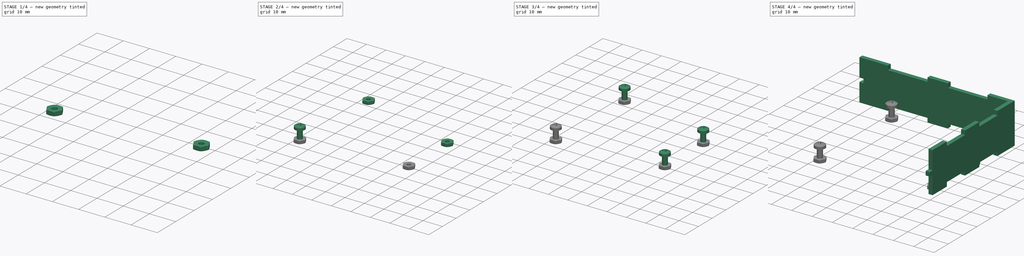
[diagram: build sequence overview — one tinted view per stage of 4, left to right]
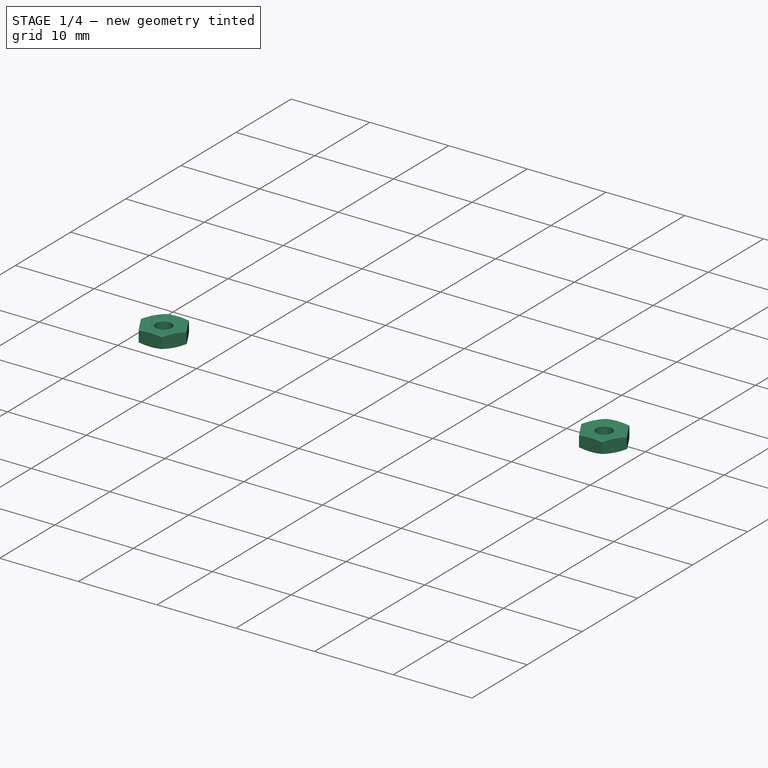
[diagram: stage 1 of 4 — iso view after this stage's code; geometry added in this stage tinted green]
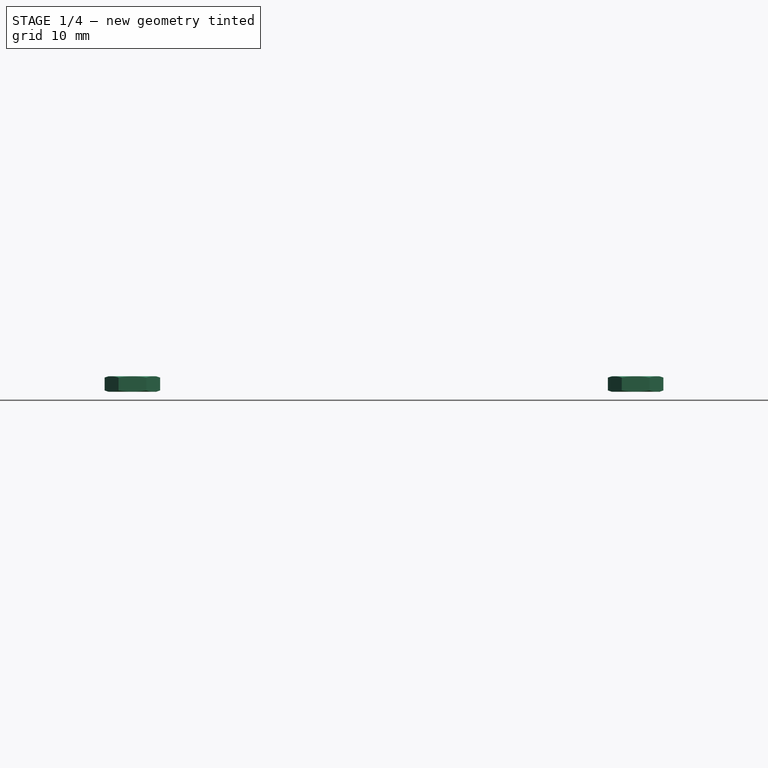
[diagram: stage 1 of 4 — front view after this stage's code; geometry added in this stage tinted green]
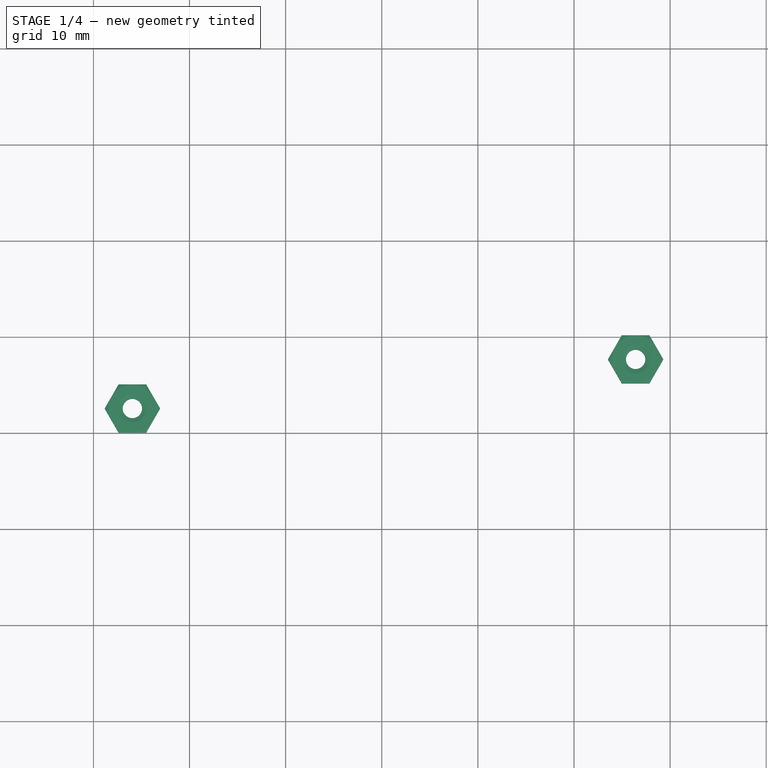
[diagram: stage 1 of 4 — top view after this stage's code; geometry added in this stage tinted green]
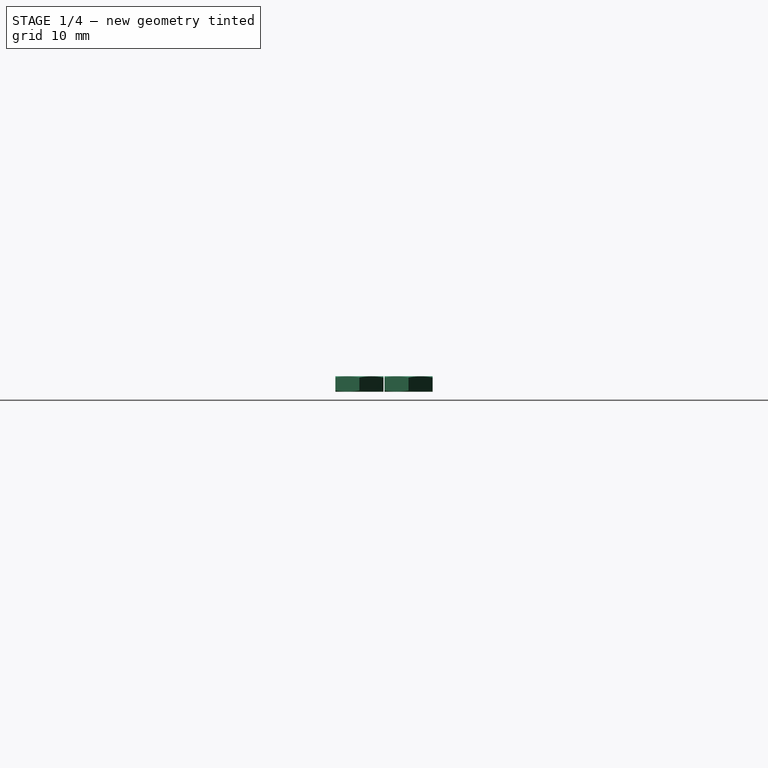
[diagram: stage 1 of 4 — right view after this stage's code; geometry added in this stage tinted green]
FCSTD DOCUMENT  (FreeCAD 0.19R)
Label: CAIXA-ARDUINO_05
License: Creative Commons Attribution-NonCommercial
LicenseURL: http://creativecommons.org/licenses/by-nc/4.0/
objects: Part::FeaturePython×8, Sketcher::SketchObject×3, Part::Extrusion×3, App::DocumentObjectGroup×2, Spreadsheet::Sheet×1, Part::Feature×1, Part::Mirroring×1
note: 16 computed .brp shape members not serialized (recipe doc carries the construction recipe); baked Part::Feature solids carry a one-line shape summary decoded from their .brp

FEATURE [Spreadsheet::Sheet] Spreadsheet
  cells = A1=Espessura; B1(width)=2; A2=Altura; B2(height)=20; A3=Furo; B3(diameter)=3.5; A4=Conector A; B4(connectorA)=12; A5=Conector B; B5(connectorB)=10; A6=Conector C; B6(connectorC)=5; A7=Folga; B7(space)=1
FEATURE [Part::Feature] ARDUINO_3D_SCALED
  Placement = pos=(0,0,3) rot=(0,0,1;0rad)
  shape: bbox 75.35 x 53.65 x 13.2 mm, 104 faces, 0 solids (baked)
  expr: .Placement.Base.z = Spreadsheet.width + Spreadsheet.space
FEATURE [Sketcher::SketchObject] Sketch  label="Base"
  ExternalGeometry = -> [ARDUINO_3D_SCALED]
  expr: Constraints[153] = Spreadsheet.diameter
  expr: Constraints[121] = Spreadsheet.width
  expr: Constraints[122] = Spreadsheet.connectorA
  expr: Constraints[124] = Spreadsheet.connectorB
  expr: Constraints[145] = Spreadsheet.space
  sketch-geometry (57):
    g0: LineSegment StartX=-1 StartY=54.65 StartZ=0 EndX=11 EndY=54.65 EndZ=0
    g1: LineSegment StartX=11 StartY=54.65 StartZ=0 EndX=11 EndY=56.65 EndZ=0
    g2: LineSegment StartX=11 StartY=56.65 StartZ=0 EndX=30.475 EndY=56.65 EndZ=0
    g3: LineSegment StartX=30.475 StartY=56.65 StartZ=0 EndX=30.475 EndY=54.65 EndZ=0
    g4: LineSegment StartX=30.475 StartY=54.65 StartZ=0 EndX=40.475 EndY=54.65 EndZ=0
    g5: LineSegment StartX=40.475 StartY=54.65 StartZ=0 EndX=40.475 EndY=56.65 EndZ=0
    g6: LineSegment StartX=40.475 StartY=56.65 StartZ=0 EndX=59.95 EndY=56.65 EndZ=0
    g7: LineSegment StartX=59.95 StartY=56.65 StartZ=0 EndX=59.95 EndY=54.65 EndZ=0
    g8: LineSegment StartX=59.95 StartY=54.65 StartZ=0 EndX=69.95 EndY=54.65 EndZ=0
    g9: LineSegment StartX=69.95 StartY=54.65 StartZ=0 EndX=69.95 EndY=44.65 EndZ=0
    g10: LineSegment StartX=69.95 StartY=44.65 StartZ=0 EndX=71.95 EndY=44.65 EndZ=0
    g11: LineSegment StartX=71.95 StartY=44.65 StartZ=0 EndX=71.95 EndY=31.825 EndZ=0
    g12: LineSegment StartX=71.95 StartY=31.825 StartZ=0 EndX=69.95 EndY=31.825 EndZ=0
    g13: LineSegment StartX=69.95 StartY=31.825 StartZ=0 EndX=69.95 EndY=21.825 EndZ=0
    g14: LineSegment StartX=69.95 StartY=21.825 StartZ=0 EndX=71.95 EndY=21.825 EndZ=0
    g15: LineSegment StartX=71.95 StartY=21.825 StartZ=0 EndX=71.95 EndY=9 EndZ=0
    g16: LineSegment StartX=71.95 StartY=9 StartZ=0 EndX=69.95 EndY=9 EndZ=0
    g17: LineSegment StartX=69.95 StartY=9 StartZ=0 EndX=69.95 EndY=-1 EndZ=0
    g18: LineSegment StartX=69.95 StartY=-1 StartZ=0 EndX=59.95 EndY=-1 EndZ=0
    g19: LineSegment StartX=59.95 StartY=-1 StartZ=0 EndX=59.95 EndY=-3 EndZ=0
    g20: LineSegment StartX=59.95 StartY=-3 StartZ=0 EndX=40.475 EndY=-3 EndZ=0
    g21: LineSegment StartX=40.475 StartY=-3 StartZ=0 EndX=40.475 EndY=-1 EndZ=0
    g22: LineSegment StartX=40.475 StartY=-1 StartZ=0 EndX=30.475 EndY=-1 EndZ=0
    g23: LineSegment StartX=30.475 StartY=-1 StartZ=0 EndX=30.475 EndY=-3 EndZ=0
    g24: LineSegment StartX=30.475 StartY=-3 StartZ=0 EndX=11 EndY=-3 EndZ=0
    g25: LineSegment StartX=11 StartY=-3 StartZ=0 EndX=11 EndY=-1 EndZ=0
    g26: LineSegment StartX=11 StartY=-1 StartZ=0 EndX=-1 EndY=-1 EndZ=0
    g27: LineSegment StartX=-1 StartY=-1 StartZ=0 EndX=-1 EndY=54.65 EndZ=0
    g28: LineSegment [constr] StartX=-1 StartY=54.65 StartZ=0 EndX=-1 EndY=56.65 EndZ=0
    g29: LineSegment [constr] StartX=-1 StartY=56.65 StartZ=0 EndX=11 EndY=56.65 EndZ=0
    g30: LineSegment [constr] StartX=30.475 StartY=56.65 StartZ=0 EndX=40.475 EndY=56.65 EndZ=0
    g31: LineSegment [constr] StartX=59.95 StartY=56.65 StartZ=0 EndX=71.95 EndY=56.65 EndZ=0
    g32: LineSegment [constr] StartX=71.95 StartY=56.65 StartZ=0 EndX=71.95 EndY=44.65 EndZ=0
    g33: LineSegment [constr] StartX=69.95 StartY=54.65 StartZ=0 EndX=69.95 EndY=56.65 EndZ=0
    g34: LineSegment [constr] StartX=69.95 StartY=54.65 StartZ=0 EndX=71.95 EndY=54.65 EndZ=0
    g35: LineSegment [constr] StartX=71.95 StartY=31.825 StartZ=0 EndX=71.95 EndY=21.825 EndZ=0
    g36: LineSegment [constr] StartX=69.95 StartY=44.65 StartZ=0 EndX=69.95 EndY=31.825 EndZ=0
    g37: LineSegment [constr] StartX=69.95 StartY=21.825 StartZ=0 EndX=69.95 EndY=9 EndZ=0
    g38: LineSegment [constr] StartX=40.475 StartY=54.65 StartZ=0 EndX=59.95 EndY=54.65 EndZ=0
    g39: LineSegment [constr] StartX=11 StartY=54.65 StartZ=0 EndX=30.475 EndY=54.65 EndZ=0
    g40: LineSegment [constr] StartX=71.95 StartY=9 StartZ=0 EndX=71.95 EndY=-3 EndZ=0
    g41: LineSegment [constr] StartX=71.95 StartY=-3 StartZ=0 EndX=59.95 EndY=-3 EndZ=0
    g42: LineSegment [constr] StartX=69.95 StartY=-1 StartZ=0 EndX=71.95 EndY=-1 EndZ=0
    g43: LineSegment [constr] StartX=69.95 StartY=-1 StartZ=0 EndX=69.95 EndY=-3 EndZ=0
    g44: LineSegment [constr] StartX=40.475 StartY=-1 StartZ=0 EndX=59.95 EndY=-1 EndZ=0
    g45: LineSegment [constr] StartX=30.475 StartY=-3 StartZ=0 EndX=40.475 EndY=-3 EndZ=0
    g46: LineSegment [constr] StartX=11 StartY=-1 StartZ=0 EndX=30.475 EndY=-1 EndZ=0
    g47: LineSegment [constr] StartX=-1 StartY=-1 StartZ=0 EndX=-1 EndY=-3 EndZ=0
    g48: LineSegment [constr] StartX=-1 StartY=-3 StartZ=0 EndX=11 EndY=-3 EndZ=0
    g49: LineSegment [constr] StartX=32.925 StartY=53.65 StartZ=0 EndX=32.925 EndY=54.65 EndZ=0
    g50: LineSegment [constr] StartX=68.95 StartY=21.575 StartZ=0 EndX=69.95 EndY=21.575 EndZ=0
    g51: LineSegment [constr] StartX=33.2 StartY=4e-16 StartZ=0 EndX=33.2 EndY=-1 EndZ=0
    g52: LineSegment [constr] StartX=-1e-16 StartY=22.75 StartZ=0 EndX=-1 EndY=22.75 EndZ=0
    g53: Circle CenterX=14.0525 CenterY=2.55698 CenterZ=0 NormalX=0 NormalY=0 NormalZ=1 AngleXU=0 Radius=1.75
    g54: Circle CenterX=66.4139 CenterY=7.6684 CenterZ=0 NormalX=0 NormalY=0 NormalZ=1 AngleXU=0 Radius=1.75
    g55: Circle CenterX=66.41 CenterY=35.7498 CenterZ=0 NormalX=0 NormalY=0 NormalZ=1 AngleXU=0 Radius=1.75
    g56: Circle CenterX=15.3341 CenterY=51.0829 CenterZ=0 NormalX=0 NormalY=0 NormalZ=1 AngleXU=0 Radius=1.75
  constraints (154):
    c: Horizontal(g0)
    c: Coincident(g0,g1)
    c: Vertical(g1)
    c: Coincident(g1,g2)
    c: Horizontal(g2)
    c: Coincident(g2,g3)
    c: Vertical(g3)
    c: Coincident(g3,g4)
    c: Horizontal(g4)
    c: Coincident(g4,g5)
    c: Vertical(g5)
    c: Coincident(g5,g6)
    c: Horizontal(g6)
    c: Coincident(g6,g7)
    c: Vertical(g7)
    c: Coincident(g7,g8)
    c: Horizontal(g8)
    c: Coincident(g8,g9)
    c: Vertical(g9)
    c: Coincident(g9,g10)
    c: Horizontal(g10)
    c: Coincident(g10,g11)
    c: Vertical(g11)
    c: Coincident(g11,g12)
    c: Horizontal(g12)
    c: Coincident(g12,g13)
    c: Vertical(g13)
    c: Coincident(g13,g14)
    c: Horizontal(g14)
    c: Coincident(g14,g15)
    c: Vertical(g15)
    c: Coincident(g15,g16)
    c: Horizontal(g16)
    c: Coincident(g16,g17)
    c: Vertical(g17)
    c: Coincident(g17,g18)
    c: Horizontal(g18)
    c: Coincident(g18,g19)
    c: Vertical(g19)
    c: Coincident(g19,g20)
    c: Horizontal(g20)
    c: Coincident(g20,g21)
    c: Vertical(g21)
    c: Coincident(g21,g22)
    c: Horizontal(g22)
    c: Coincident(g22,g23)
    c: Vertical(g23)
    c: Coincident(g23,g24)
    c: Horizontal(g24)
    c: Coincident(g24,g25)
    c: Vertical(g25)
    c: Coincident(g25,g26)
    c: Horizontal(g26)
    c: Coincident(g26,g27)
    c: Vertical(g27)
    c: Coincident(g27,g0)
    c: Coincident(g0,g28)
    c: Vertical(g28)
    c: Coincident(g28,g29)
    c: Horizontal(g29)
    c: Coincident(g2,g30)
    c: Coincident(g30,g5)
    c: Horizontal(g30)
    c: Coincident(g6,g31)
    c: Horizontal(g31)
    c: Coincident(g32,g10)
    c: Vertical(g32)
    c: Coincident(g31,g32)
    c: Coincident(g33,g8)
    c: PointOnObject(g33,g31)
    c: Vertical(g33)
    c: Coincident(g34,g8)
    c: PointOnObject(g34,g32)
    c: Horizontal(g34)
    c: Coincident(g35,g11)
    c: Coincident(g35,g14)
    c: Vertical(g35)
    c: Coincident(g36,g9)
    c: Coincident(g36,g12)
    c: Vertical(g36)
    c: Coincident(g37,g13)
    c: Coincident(g37,g16)
    c: Vertical(g37)
    c: Coincident(g38,g4)
    c: Coincident(g38,g7)
    c: Horizontal(g38)
    c: Coincident(g39,g0)
    c: Coincident(g39,g3)
    c: Horizontal(g39)
    c: Coincident(g15,g40)
    c: Vertical(g40)
    c: Coincident(g40,g41)
    c: Coincident(g41,g19)
    c: Horizontal(g41)
    c: Coincident(g42,g17)
    c: PointOnObject(g42,g40)
    c: Horizontal(g42)
    c: Coincident(g43,g17)
    c: PointOnObject(g43,g41)
    c: Vertical(g43)
    c: Coincident(g44,g21)
    c: Coincident(g44,g18)
    c: Horizontal(g44)
    c: Coincident(g45,g23)
    c: Coincident(g45,g20)
    c: Horizontal(g45)
    c: Coincident(g46,g25)
    c: Coincident(g46,g22)
    c: Horizontal(g46)
    c: Coincident(g26,g47)
    c: Coincident(g47,g48)
    c: Coincident(g48,g24)
    c: Horizontal(g48)
    c: Equal(g29,g31)
    c: Equal(g31,g32)
    c: Equal(g32,g40)
    c: Equal(g40,g41)
    c: Equal(g41,g48)
    c: Coincident(g1,g29)
    c: Equal(g34,g33)
    c: Equal(g33,g43)
    c: DistanceY(g28,g28) = 2
    c: DistanceX(g29,g29) = 12
    c: Equal(g30,g45)
    c: DistanceX(g30,g30) = 10
    c: Equal(g6,g2)
    c: Equal(g2,g24)
    c: Equal(g24,g20)
    c: PointOnObject(g49,g4)
    c: Vertical(g49)
    c: PointOnObject(g50,g13)
    c: Horizontal(g50)
    c: PointOnObject(g51,g22)
    c: Vertical(g51)
    c: PointOnObject(g52,g27)
    c: Horizontal(g52)
    c: Symmetric(g-4,g-4,g52)
    c: Symmetric(g-3,g-3,g49)
    c: Symmetric(g-6,g-6,g50)
    c: Symmetric(g-5,g-5,g51)
    c: Equal(g51,g50)
    c: Equal(g50,g49)
    c: Equal(g49,g52)
    c: Equal(g35,g30)
    c: Equal(g11,g15)
    c: DistanceY(g49,g49) = 1
    c: Coincident(g53,g-15)
    c: Coincident(g54,g-14)
    c: Coincident(g55,g-13)
    c: Coincident(g56,g-12)
    c: Equal(g56,g55)
    c: Equal(g55,g54)
    c: Equal(g54,g53)
    c: Diameter(g56) = 3.5
FEATURE [Part::Extrusion] Extrude  label="Base001"
  Base = -> Sketch
  Dir = (0,0,1)
  DirMode = 2
  FaceMakerClass = Part::FaceMakerBullseye
  LengthFwd = 2
  LengthRev = 0
  Solid = true
  Symmetric = false
  expr: LengthFwd = Spreadsheet.width
FEATURE [Part::FeaturePython] Nut002  label="M2.5-Nut083"  # Fasteners workbench fastener (typed FeaturePython)
  Placement = pos=(66.4139,7.6684,0) rot=(-1,0,0;3.14159rad)
  baseObject = -> Extrude [Edge92]
  diameter = 3
  invert = true
  matchOuter = false
  offset = 0
  thread = false
  type = 9
FEATURE [Part::FeaturePython] Nut003  label="M2.5-Nut084"  # Fasteners workbench fastener (typed FeaturePython)
  Placement = pos=(14.0525,2.55698,0) rot=(-1,0,0;3.14159rad)
  baseObject = -> Extrude [Edge95]
  diameter = 3
  invert = true
  matchOuter = false
  offset = 0
  thread = false
  type = 9
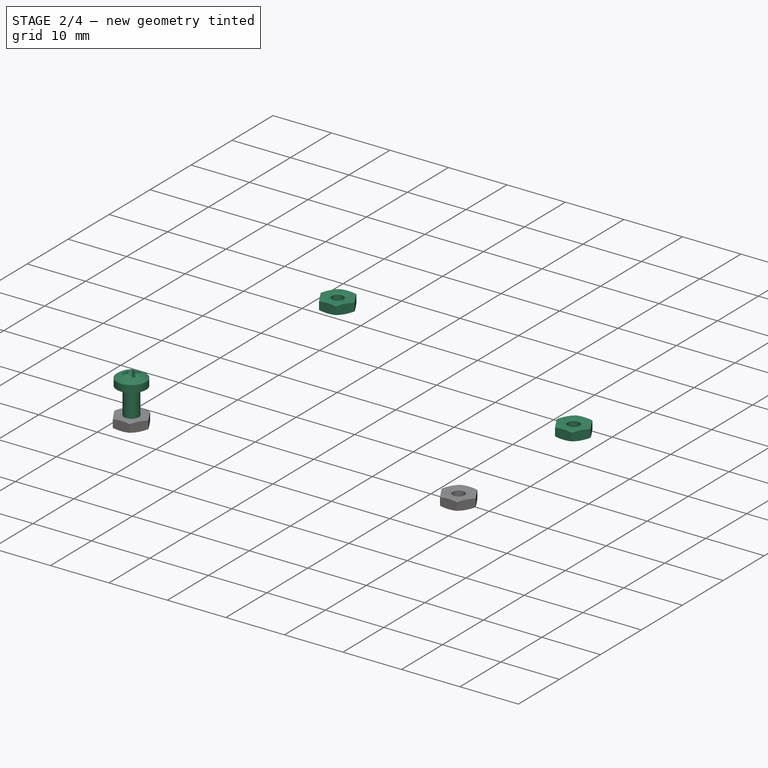
[diagram: stage 2 of 4 — iso view after this stage's code; geometry added in this stage tinted green]
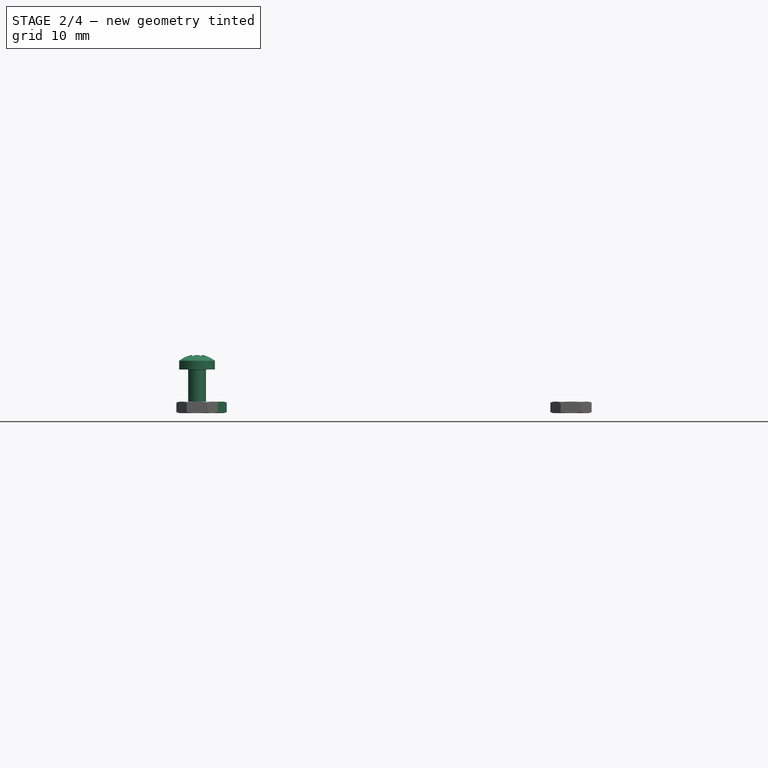
[diagram: stage 2 of 4 — front view after this stage's code; geometry added in this stage tinted green]
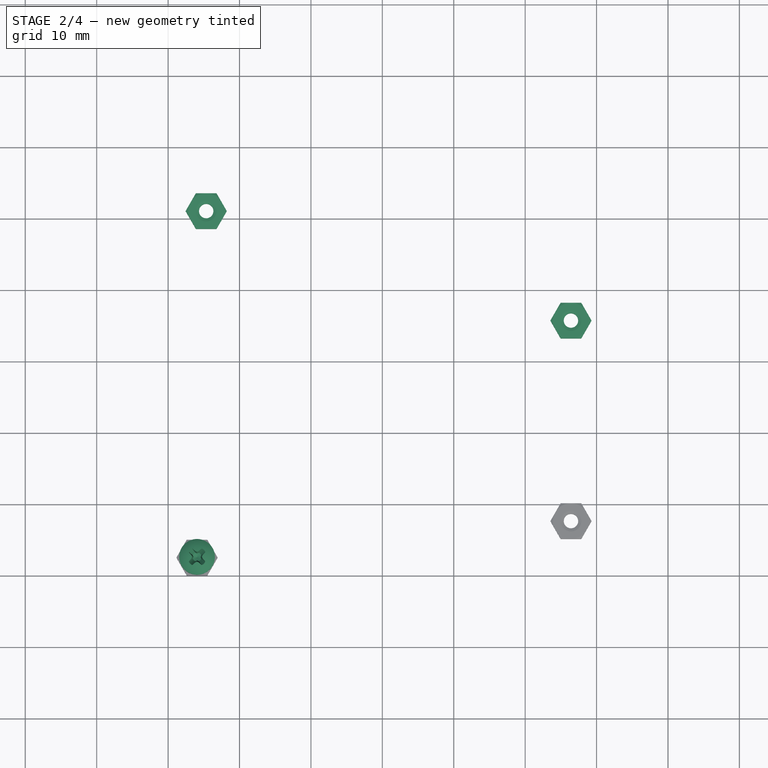
[diagram: stage 2 of 4 — top view after this stage's code; geometry added in this stage tinted green]
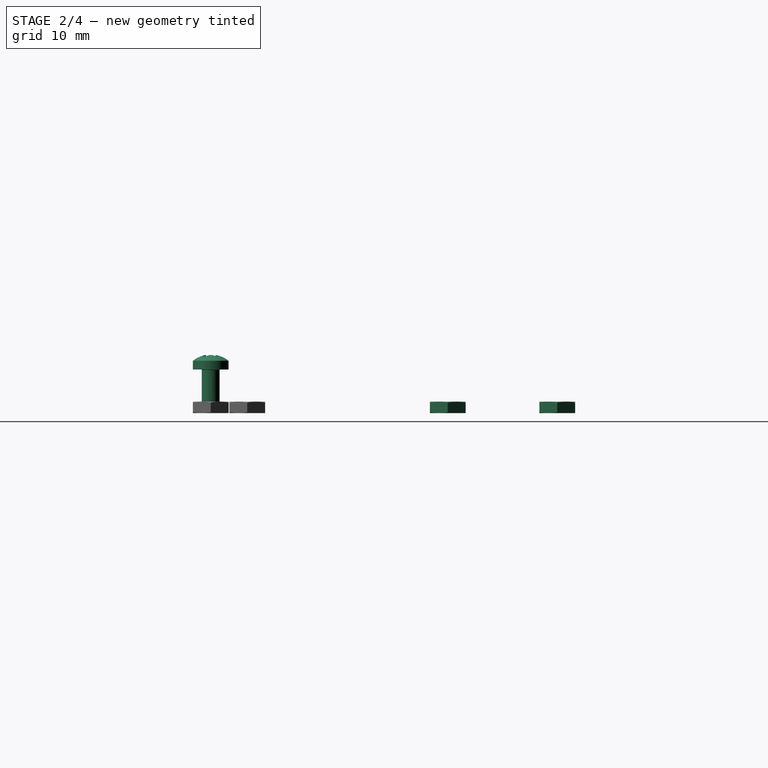
[diagram: stage 2 of 4 — right view after this stage's code; geometry added in this stage tinted green]
FEATURE [Part::FeaturePython] Nut  label="M2.5-Nut"  # Fasteners workbench fastener (typed FeaturePython)
  Placement = pos=(15.3341,51.0829,0) rot=(-1,0,0;3.14159rad)
  baseObject = -> Extrude [Edge86]
  diameter = 3
  invert = true
  matchOuter = false
  offset = 0
  thread = false
  type = 9
FEATURE [Part::FeaturePython] Nut001  label="M2.5-Nut082"  # Fasteners workbench fastener (typed FeaturePython)
  Placement = pos=(66.41,35.7498,0) rot=(-1,0,0;3.14159rad)
  baseObject = -> Extrude [Edge89]
  diameter = 3
  invert = true
  matchOuter = false
  offset = 0
  thread = false
  type = 9
FEATURE [Part::FeaturePython] Screw003  label="M2.5x6-Screw069"  # Fasteners workbench fastener (typed FeaturePython)
  Placement = pos=(14.0525,2.55698,4.5) rot=(0,0,1;0rad)
  baseObject = -> Extrude [Edge96]
  diameter = 3
  invert = false
  length = 3
  lengthCustom = 6
  matchOuter = false
  offset = 2.5
  thread = false
  type = 33
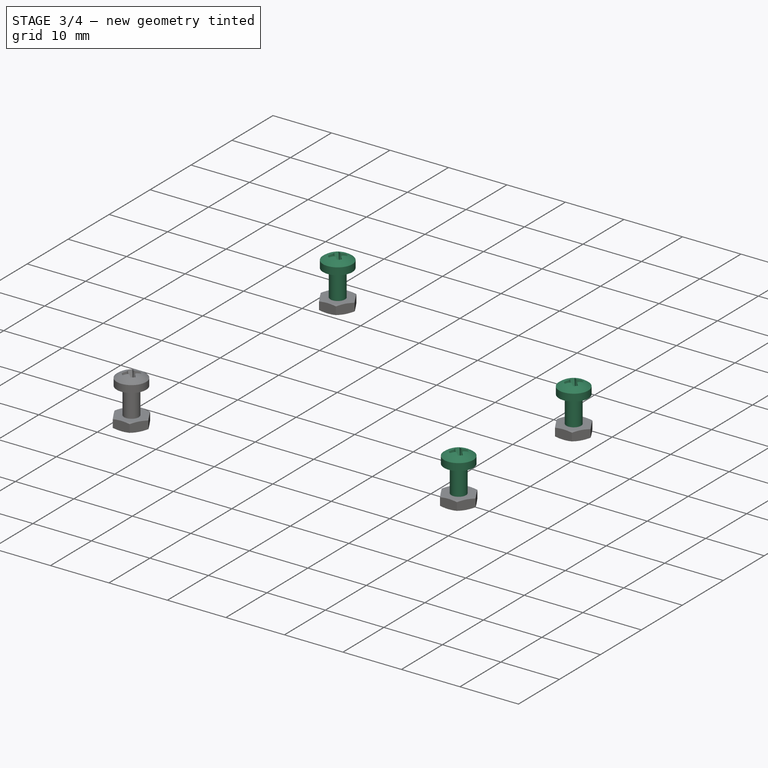
[diagram: stage 3 of 4 — iso view after this stage's code; geometry added in this stage tinted green]
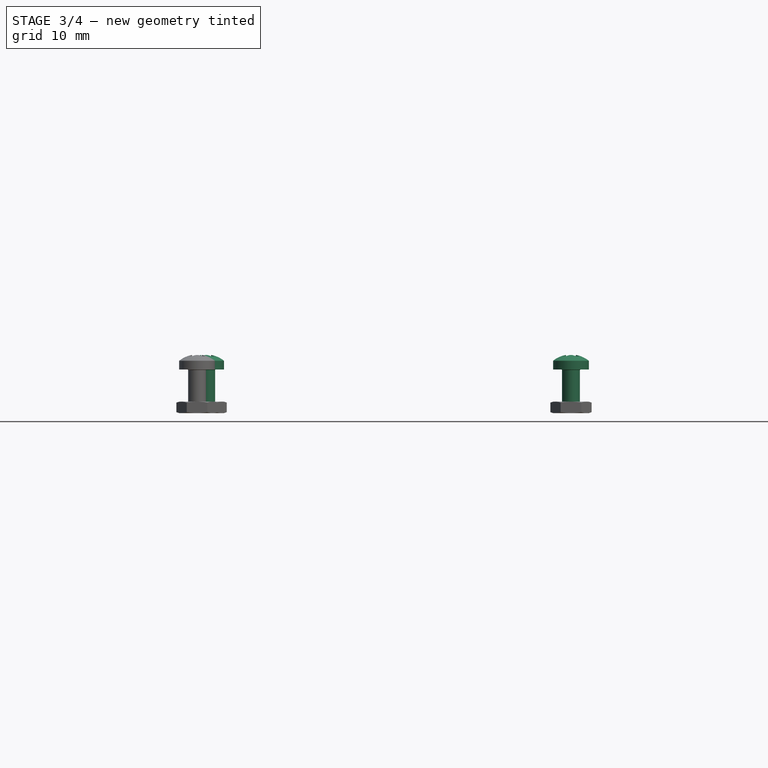
[diagram: stage 3 of 4 — front view after this stage's code; geometry added in this stage tinted green]
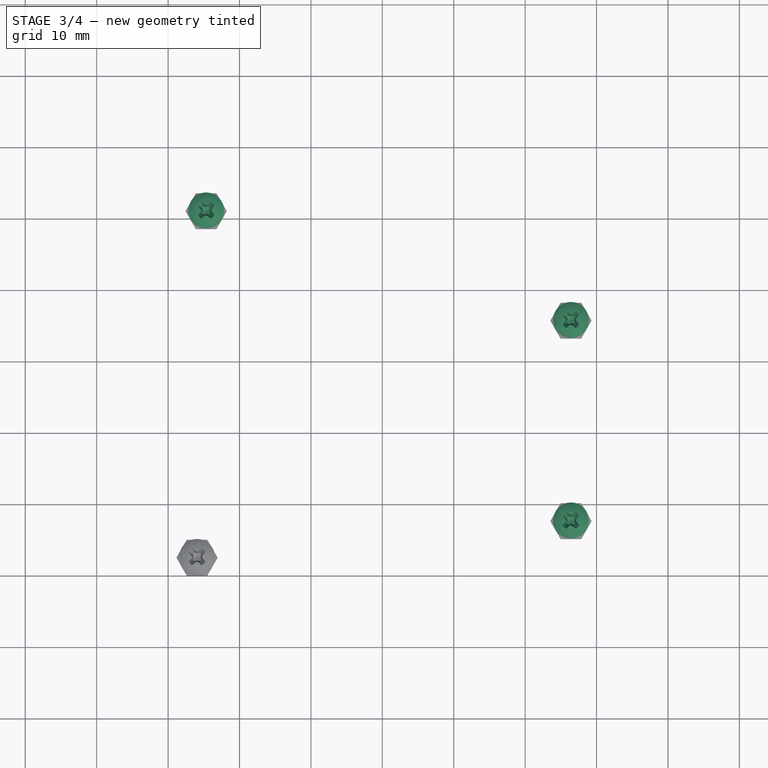
[diagram: stage 3 of 4 — top view after this stage's code; geometry added in this stage tinted green]
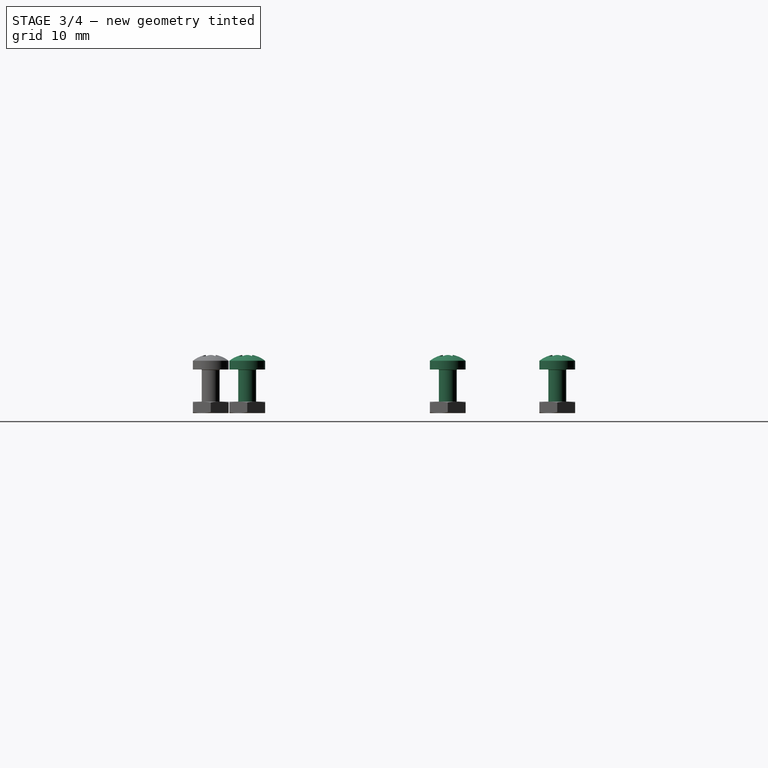
[diagram: stage 3 of 4 — right view after this stage's code; geometry added in this stage tinted green]
FEATURE [Part::FeaturePython] Screw  label="M2.5x6-Screw"  # Fasteners workbench fastener (typed FeaturePython)
  Placement = pos=(66.4139,7.6684,4.5) rot=(0,0,1;0rad)
  baseObject = -> Extrude [Edge93]
  diameter = 3
  invert = false
  length = 3
  lengthCustom = 6
  matchOuter = false
  offset = 2.5
  thread = false
  type = 33
FEATURE [Part::FeaturePython] Screw001  label="M2.5x6-Screw067"  # Fasteners workbench fastener (typed FeaturePython)
  Placement = pos=(66.41,35.7498,4.5) rot=(0,0,1;0rad)
  baseObject = -> Extrude [Edge90]
  diameter = 3
  invert = false
  length = 3
  lengthCustom = 6
  matchOuter = false
  offset = 2.5
  thread = false
  type = 33
FEATURE [Part::FeaturePython] Screw002  label="M2.5x6-Screw068"  # Fasteners workbench fastener (typed FeaturePython)
  Placement = pos=(15.3341,51.0829,4.5) rot=(0,0,1;0rad)
  baseObject = -> Extrude [Edge87]
  diameter = 3
  invert = false
  length = 3
  lengthCustom = 6
  matchOuter = false
  offset = 2.5
  thread = false
  type = 33
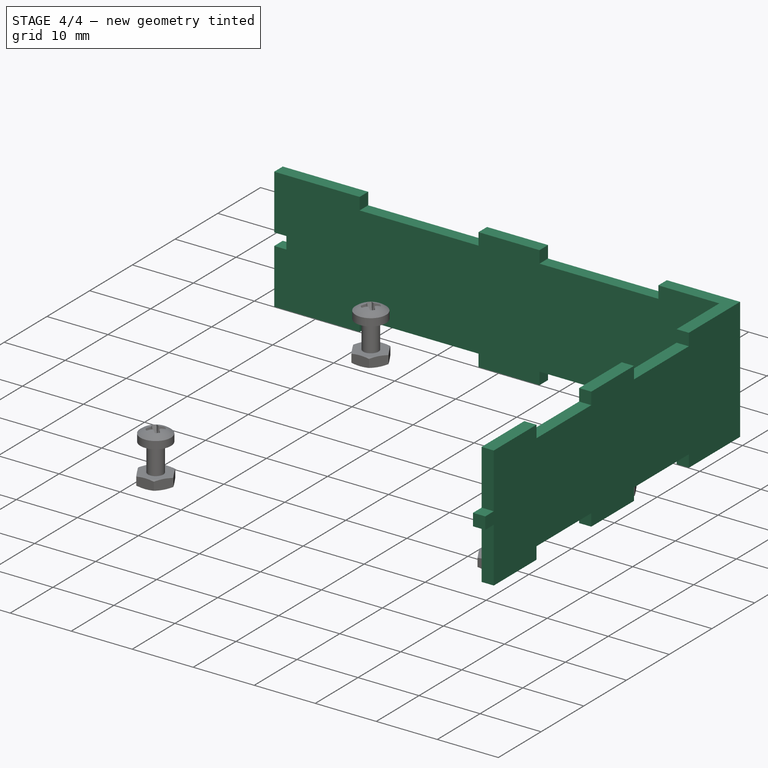
[diagram: stage 4 of 4 — iso view after this stage's code; geometry added in this stage tinted green]
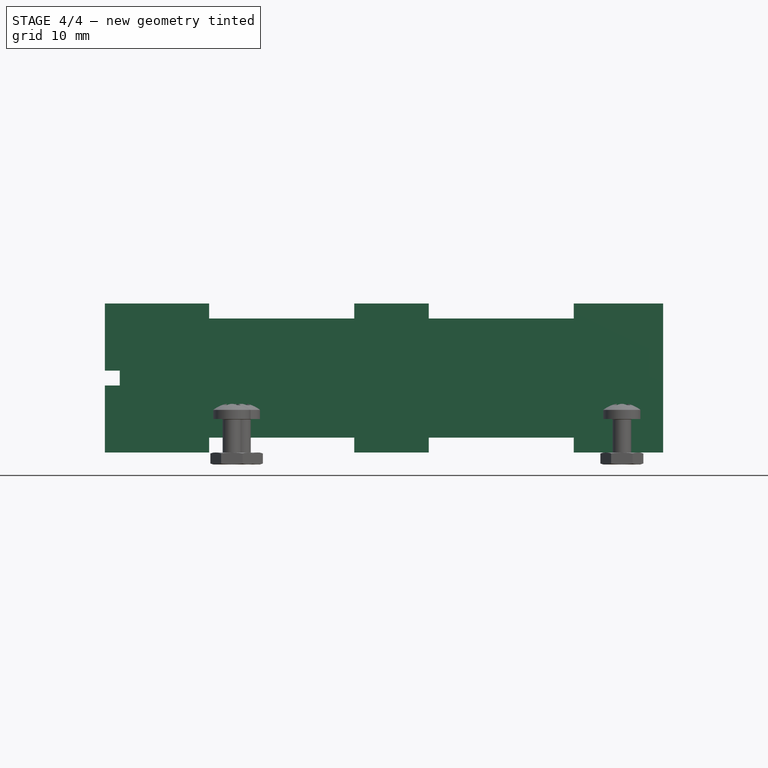
[diagram: stage 4 of 4 — front view after this stage's code; geometry added in this stage tinted green]
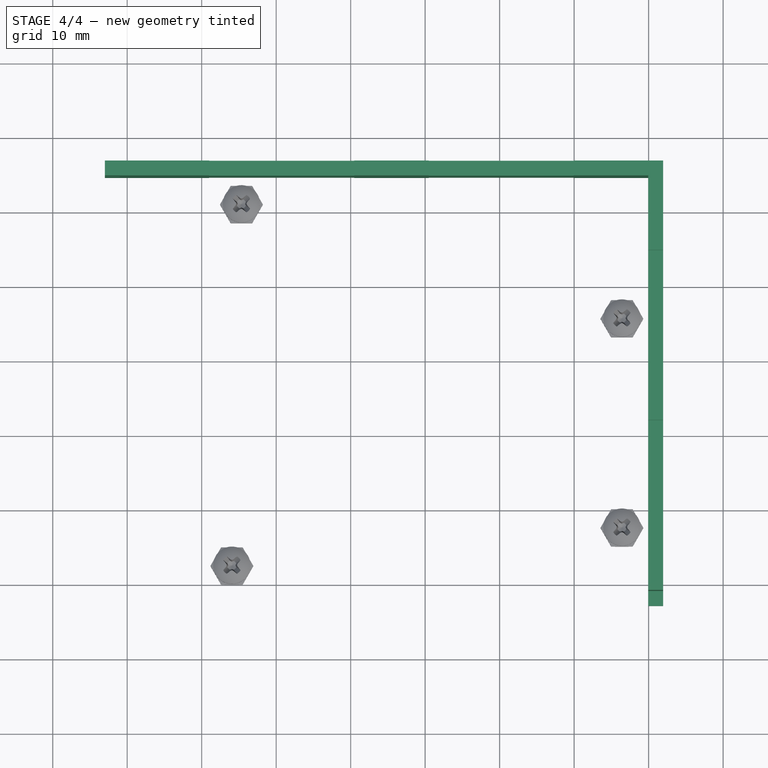
[diagram: stage 4 of 4 — top view after this stage's code; geometry added in this stage tinted green]
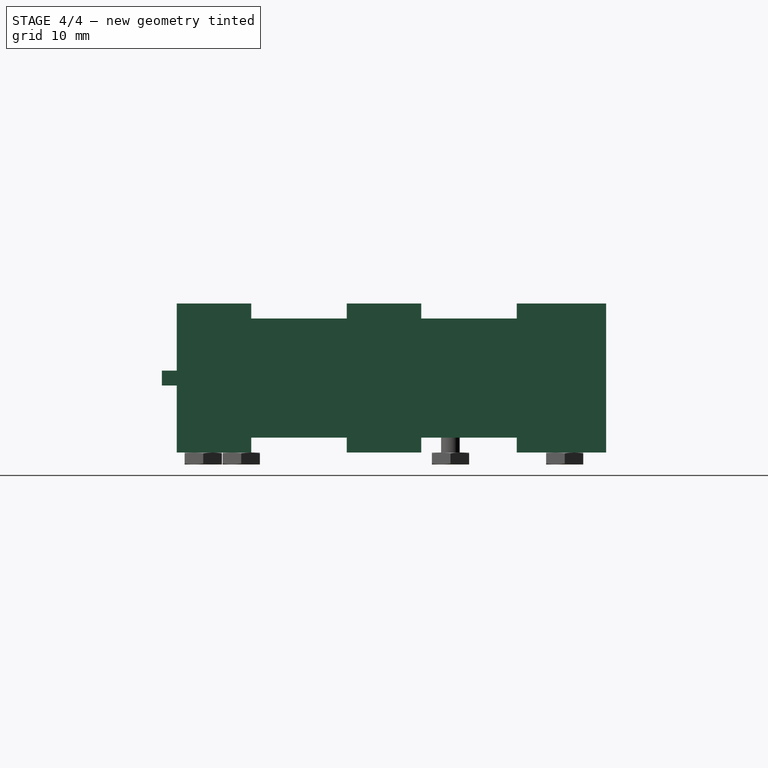
[diagram: stage 4 of 4 — right view after this stage's code; geometry added in this stage tinted green]
FEATURE [Sketcher::SketchObject] Sketch001  label="Lateral Inf001"
  ExternalGeometry = -> [Extrude]
  MapMode = 5
  Placement = pos=(0,-1,0) rot=(1,0,0;1.5708rad)
  Support = -> [Extrude]
  expr: Constraints[173] = Spreadsheet.width
  expr: Constraints[172] = Spreadsheet.connectorA
  expr: Constraints[157] = Spreadsheet.height
  expr: Constraints[171] = Spreadsheet.connectorA + Spreadsheet.width
  expr: Constraints[170] = Spreadsheet.connectorB
  sketch-geometry (74):
    g0: LineSegment [constr] StartX=-1 StartY=11 StartZ=0 EndX=11 EndY=11 EndZ=0
    g1: LineSegment [constr] StartX=11 StartY=11 StartZ=0 EndX=11 EndY=9 EndZ=0
    g2: LineSegment [constr] StartX=11 StartY=9 StartZ=0 EndX=-1 EndY=9 EndZ=0
    g3: LineSegment StartX=-1 StartY=9 StartZ=0 EndX=-1 EndY=11 EndZ=0
    g4: LineSegment [constr] StartX=30.475 StartY=11 StartZ=0 EndX=40.475 EndY=11 EndZ=0
    g5: LineSegment [constr] StartX=40.475 StartY=11 StartZ=0 EndX=40.475 EndY=9 EndZ=0
    g6: LineSegment [constr] StartX=40.475 StartY=9 StartZ=0 EndX=30.475 EndY=9 EndZ=0
    g7: LineSegment [constr] StartX=30.475 StartY=9 StartZ=0 EndX=30.475 EndY=11 EndZ=0
    g8: LineSegment StartX=69.95 StartY=11 StartZ=0 EndX=69.95 EndY=9 EndZ=0
    g9: LineSegment [constr] StartX=69.95 StartY=11 StartZ=0 EndX=69.95 EndY=18 EndZ=0
    g10: LineSegment [constr] StartX=69.95 StartY=18 StartZ=0 EndX=59.95 EndY=18 EndZ=0
    g11: LineSegment StartX=59.95 StartY=18 StartZ=0 EndX=59.95 EndY=20 EndZ=0
    g12: LineSegment [constr] StartX=69.95 StartY=20 StartZ=0 EndX=69.95 EndY=18 EndZ=0
    g13: LineSegment StartX=59.95 StartY=18 StartZ=0 EndX=40.475 EndY=18 EndZ=0
    g14: LineSegment [constr] StartX=40.475 StartY=18 StartZ=0 EndX=40.475 EndY=11 EndZ=0
    g15: LineSegment [constr] StartX=40.475 StartY=11 StartZ=0 EndX=59.95 EndY=11 EndZ=0
    g16: LineSegment [constr] StartX=59.95 StartY=11 StartZ=0 EndX=59.95 EndY=18 EndZ=0
    g17: LineSegment [constr] StartX=30.475 StartY=11 StartZ=0 EndX=11 EndY=11 EndZ=0
    g18: LineSegment [constr] StartX=11 StartY=11 StartZ=0 EndX=11 EndY=18 EndZ=0
    g19: LineSegment StartX=11 StartY=18 StartZ=0 EndX=30.475 EndY=18 EndZ=0
    g20: LineSegment [constr] StartX=30.475 StartY=18 StartZ=0 EndX=30.475 EndY=11 EndZ=0
    g21: LineSegment [constr] StartX=40.475 StartY=18 StartZ=0 EndX=30.475 EndY=18 EndZ=0
    g22: LineSegment StartX=30.475 StartY=18 StartZ=0 EndX=30.475 EndY=20 EndZ=0
    g23: LineSegment StartX=30.475 StartY=20 StartZ=0 EndX=40.475 EndY=20 EndZ=0
    g24: LineSegment StartX=40.475 StartY=20 StartZ=0 EndX=40.475 EndY=18 EndZ=0
    g25: LineSegment [constr] StartX=11 StartY=18 StartZ=0 EndX=-1 EndY=18 EndZ=0
    g26: LineSegment [constr] StartX=-1 StartY=18 StartZ=0 EndX=-1 EndY=20 EndZ=0
    g27: LineSegment StartX=11 StartY=20 StartZ=0 EndX=11 EndY=18 EndZ=0
    g28: LineSegment [constr] StartX=11 StartY=9 StartZ=0 EndX=30.475 EndY=9 EndZ=0
    g29: LineSegment StartX=30.475 StartY=0 StartZ=0 EndX=40.475 EndY=0 EndZ=0
    g30: LineSegment StartX=-3 StartY=0 StartZ=0 EndX=11 EndY=0 EndZ=0
    g31: LineSegment [constr] StartX=40.475 StartY=20 StartZ=0 EndX=59.95 EndY=20 EndZ=0
    g32: LineSegment [constr] StartX=11 StartY=20 StartZ=0 EndX=30.475 EndY=20 EndZ=0
    g33: LineSegment [constr] StartX=-1 StartY=11 StartZ=0 EndX=-1 EndY=18 EndZ=0
    g34: LineSegment [constr] StartX=30.475 StartY=0 StartZ=0 EndX=11 EndY=0 EndZ=0
    g35: LineSegment [constr] StartX=40.475 StartY=0 StartZ=0 EndX=59.95 EndY=0 EndZ=0
    g36: LineSegment StartX=69.95 StartY=9 StartZ=0 EndX=71.95 EndY=9 EndZ=0
    g37: LineSegment [constr] StartX=71.95 StartY=9 StartZ=0 EndX=71.95 EndY=11 EndZ=0
    g38: LineSegment StartX=71.95 StartY=11 StartZ=0 EndX=69.95 EndY=11 EndZ=0
    g39: LineSegment [constr] StartX=69.95 StartY=18 StartZ=0 EndX=71.95 EndY=18 EndZ=0
    g40: LineSegment StartX=-1 StartY=9 StartZ=0 EndX=-3 EndY=9 EndZ=0
    g41: LineSegment [constr] StartX=-3 StartY=9 StartZ=0 EndX=-3 EndY=11 EndZ=0
    g42: LineSegment StartX=-3 StartY=11 StartZ=0 EndX=-1 EndY=11 EndZ=0
    g43: LineSegment [constr] StartX=-1 StartY=18 StartZ=0 EndX=-4 EndY=18 EndZ=0
    g44: LineSegment StartX=-3 StartY=9 StartZ=0 EndX=-3 EndY=0 EndZ=0
    g45: LineSegment StartX=71.95 StartY=9 StartZ=0 EndX=71.95 EndY=0 EndZ=0
    g46: LineSegment StartX=71.95 StartY=0 StartZ=0 EndX=59.95 EndY=0 EndZ=0
    g47: LineSegment [constr] StartX=69.95 StartY=9 StartZ=0 EndX=69.95 EndY=2 EndZ=0
    g48: LineSegment [constr] StartX=69.95 StartY=2 StartZ=0 EndX=69.95 EndY=0 EndZ=0
    g49: LineSegment [constr] StartX=69.95 StartY=2 StartZ=0 EndX=71.95 EndY=2 EndZ=0
    g50: LineSegment StartX=59.95 StartY=0 StartZ=0 EndX=59.95 EndY=2 EndZ=0
    g51: LineSegment [constr] StartX=59.95 StartY=2 StartZ=0 EndX=69.95 EndY=2 EndZ=0
    g52: LineSegment StartX=59.95 StartY=2 StartZ=0 EndX=40.475 EndY=2 EndZ=0
    g53: LineSegment [constr] StartX=40.475 StartY=2 StartZ=0 EndX=40.475 EndY=9 EndZ=0
    g54: LineSegment StartX=40.475 StartY=2 StartZ=0 EndX=40.475 EndY=0 EndZ=0
    g55: LineSegment [constr] StartX=30.475 StartY=9 StartZ=0 EndX=30.475 EndY=2 EndZ=0
    g56: LineSegment StartX=30.475 StartY=2 StartZ=0 EndX=30.475 EndY=0 EndZ=0
    g57: LineSegment [constr] StartX=30.475 StartY=2 StartZ=0 EndX=40.475 EndY=2 EndZ=0
    g58: LineSegment StartX=11 StartY=0 StartZ=0 EndX=11 EndY=2 EndZ=0
    g59: LineSegment StartX=11 StartY=2 StartZ=0 EndX=30.475 EndY=2 EndZ=0
    g60: LineSegment [constr] StartX=-1 StartY=9 StartZ=0 EndX=-1 EndY=2 EndZ=0
    g61: LineSegment [constr] StartX=-1 StartY=2 StartZ=0 EndX=-1 EndY=0 EndZ=0
    g62: LineSegment [constr] StartX=-3 StartY=2 StartZ=0 EndX=-1 EndY=2 EndZ=0
    g63: LineSegment [constr] StartX=-1 StartY=2 StartZ=0 EndX=11 EndY=2 EndZ=0
    g64: LineSegment [constr] StartX=11 StartY=2 StartZ=0 EndX=11 EndY=9 EndZ=0
    g65: LineSegment StartX=11 StartY=20 StartZ=0 EndX=-3 EndY=20 EndZ=0
    g66: LineSegment StartX=59.95 StartY=20 StartZ=0 EndX=71.95 EndY=20 EndZ=0
    g67: LineSegment StartX=71.95 StartY=20 StartZ=0 EndX=71.95 EndY=11 EndZ=0
    g68: LineSegment StartX=-3 StartY=20 StartZ=0 EndX=-3 EndY=11 EndZ=0
    g69: LineSegment [constr] StartX=69.95 StartY=11 StartZ=0 EndX=59.95 EndY=11 EndZ=0
    g70: LineSegment [constr] StartX=40.475 StartY=9 StartZ=0 EndX=59.95 EndY=9 EndZ=0
    g71: LineSegment [constr] StartX=59.95 StartY=9 StartZ=0 EndX=69.95 EndY=9 EndZ=0
    g72: LineSegment [constr] StartX=59.95 StartY=11 StartZ=0 EndX=59.95 EndY=9 EndZ=0
    g73: LineSegment [constr] StartX=59.95 StartY=9 StartZ=0 EndX=59.95 EndY=2 EndZ=0
  constraints (192):
    c: Coincident(g0,g1)
    c: Coincident(g1,g2)
    c: Coincident(g2,g3)
    c: Coincident(g3,g0)
    c: Horizontal(g0)
    c: Horizontal(g2)
    c: Vertical(g1)
    c: Vertical(g3)
    c: Coincident(g4,g5)
    c: Coincident(g5,g6)
    c: Coincident(g6,g7)
    c: Coincident(g7,g4)
    c: Horizontal(g4)
    c: Horizontal(g6)
    c: Vertical(g5)
    c: Vertical(g7)
    c: Vertical(g8)
    c: Vertical(g9)
    c: Coincident(g10,g11)
    c: Coincident(g12,g10)
    c: Horizontal(g10)
    c: Vertical(g11)
    c: Vertical(g12)
    c: Coincident(g10,g9)
    c: Coincident(g13,g14)
    c: Coincident(g14,g15)
    c: Coincident(g15,g16)
    c: Coincident(g16,g13)
    c: Horizontal(g13)
    c: Horizontal(g15)
    c: Vertical(g14)
    c: Vertical(g16)
    c: Coincident(g13,g10)
    c: Coincident(g14,g4)
    c: Coincident(g17,g18)
    c: Coincident(g18,g19)
    c: Coincident(g19,g20)
    c: Coincident(g20,g17)
    c: Horizontal(g17)
    c: Horizontal(g19)
    c: Vertical(g18)
    c: Vertical(g20)
    c: Coincident(g17,g4)
    c: Coincident(g21,g22)
    c: Coincident(g22,g23)
    c: Coincident(g23,g24)
    c: Coincident(g24,g21)
    c: Horizontal(g21)
    c: Horizontal(g23)
    c: Vertical(g22)
    c: Vertical(g24)
    c: Coincident(g21,g13)
    c: Coincident(g25,g26)
    c: Coincident(g27,g25)
    c: Horizontal(g25)
    c: Vertical(g26)
    c: Vertical(g27)
    c: Coincident(g25,g18)
    c: Horizontal(g28)
    c: Coincident(g28,g1)
    c: Coincident(g19,g21)
    c: Coincident(g0,g17)
    c: Coincident(g6,g28)
    c: Horizontal(g29)
    c: Horizontal(g30)
    c: Coincident(g31,g23)
    c: Coincident(g31,g11)
    c: Horizontal(g31)
    c: Coincident(g32,g22)
    c: Horizontal(g32)
    c: Coincident(g33,g0)
    c: Coincident(g33,g25)
    c: Vertical(g33)
    c: Coincident(g34,g30)
    c: Horizontal(g34)
    c: Coincident(g35,g29)
    c: Horizontal(g35)
    c: Coincident(g8,g36)
    c: Horizontal(g36)
    c: Coincident(g36,g37)
    c: Vertical(g37)
    c: Coincident(g37,g38)
    c: Horizontal(g38)
    c: Coincident(g9,g39)
    c: Horizontal(g39)
    c: Coincident(g2,g40)
    c: Horizontal(g40)
    c: Coincident(g40,g41)
    c: Vertical(g41)
    c: Coincident(g41,g42)
    c: Coincident(g42,g0)
    c: Horizontal(g42)
    c: Coincident(g25,g43)
    c: Horizontal(g43)
    c: Coincident(g29,g34)
    c: Coincident(g44,g40)
    c: Coincident(g44,g30)
    c: Vertical(g44)
    c: Coincident(g45,g36)
    c: PointOnObject(g45,g-1)
    c: Vertical(g45)
    c: Coincident(g46,g35)
    c: Horizontal(g46)
    c: Coincident(g8,g47)
    c: Coincident(g47,g48)
    c: Vertical(g48)
    c: Coincident(g47,g49)
    c: PointOnObject(g49,g45)
    c: Horizontal(g49)
    c: Vertical(g47)
    c: Coincident(g46,g50)
    c: Coincident(g50,g51)
    c: Coincident(g51,g47)
    c: Horizontal(g51)
    c: Vertical(g50)
    c: Coincident(g50,g52)
    c: Horizontal(g52)
    c: Coincident(g52,g53)
    c: Coincident(g53,g5)
    c: Vertical(g53)
    c: Coincident(g54,g52)
    c: Coincident(g54,g29)
    c: Vertical(g54)
    c: Coincident(g6,g55)
    c: Vertical(g55)
    c: Coincident(g55,g56)
    c: Coincident(g56,g29)
    c: Vertical(g56)
    c: Coincident(g55,g57)
    c: Coincident(g57,g54)
    c: Horizontal(g57)
    c: Coincident(g30,g58)
    c: Coincident(g58,g59)
    c: Coincident(g59,g55)
    c: Horizontal(g59)
    c: Vertical(g58)
    c: Vertical(g60)
    c: Coincident(g60,g61)
    c: PointOnObject(g62,g44)
    c: Coincident(g62,g60)
    c: Horizontal(g62)
    c: Coincident(g62,g63)
    c: Coincident(g63,g58)
    c: Horizontal(g63)
    c: Coincident(g63,g64)
    c: Coincident(g64,g1)
    c: Vertical(g64)
    c: Coincident(g2,g60)
    c: Coincident(g65,g27)
    c: Horizontal(g65)
    c: PointOnObject(g26,g65)
    c: Coincident(g66,g11)
    c: Horizontal(g66)
    c: Coincident(g67,g66)
    c: Coincident(g67,g38)
    c: Coincident(g27,g32)
    c: Equal(g61,g62)
    c: DistanceY(g30,g65) = 20
    c: Equal(g32,g31)
    c: Coincident(g61,g-3)
    c: PointOnObject(g39,g67)
    c: Equal(g26,g12)
    c: Equal(g12,g39)
    c: Coincident(g8,g9)
    c: Coincident(g8,g38)
    c: Coincident(g68,g65)
    c: Coincident(g68,g42)
    c: Vertical(g68)
    c: Coincident(g69,g8)
    c: Horizontal(g69)
    c: DistanceX(g23,g23) = 10
    c: DistanceX(g65,g65) = 14
    c: DistanceX(g66,g66) = 12
    c: DistanceY(g26,g26) = 2
    c: Coincident(g60,g-3)
    c: Equal(g68,g44)
    c: Equal(g3,g26)
    c: Coincident(g48,g-4)
    c: Coincident(g45,g46)
    c: Coincident(g5,g70)
    c: Horizontal(g70)
    c: Coincident(g70,g71)
    c: Coincident(g71,g8)
    c: Horizontal(g71)
    c: Coincident(g15,g72)
    c: Coincident(g72,g70)
    c: Vertical(g72)
    c: Coincident(g72,g73)
    c: Coincident(g73,g50)
    c: Vertical(g73)
    c: Coincident(g15,g69)
    c: Vertical(g67)
FEATURE [Part::Extrusion] Extrude001  label="Lateral Inf"
  Base = -> Sketch001
  Dir = (0,-1,2e-16)
  DirMode = 2
  FaceMakerClass = Part::FaceMakerBullseye
  LengthFwd = 2
  LengthRev = 0
  Solid = true
  Symmetric = false
  expr: LengthFwd = Spreadsheet.width
FEATURE [Part::Mirroring] mirror  label="Lateral Sup"
  Base = (-1,26.825,0)
  Normal = (0,1,0)
  Source = -> Extrude001
FEATURE [Sketcher::SketchObject] Sketch002
  ExternalGeometry = -> [Extrude001,Extrude]
  MapMode = 5
  Placement = pos=(69.95,0,0) rot=(0.57735,0.57735,0.57735;2.0944rad)
  Support = -> [Extrude]
  expr: Constraints[157] = Spreadsheet.connectorB
  expr: Constraints[158] = Spreadsheet.height
  expr: Constraints[156] = Spreadsheet.connectorA - Spreadsheet.width
  expr: Constraints[153] = Spreadsheet.width
  sketch-geometry (62):
    g0: LineSegment StartX=-1 StartY=20 StartZ=0 EndX=-1 EndY=11 EndZ=0
    g1: LineSegment StartX=-1 StartY=11 StartZ=0 EndX=-3 EndY=11 EndZ=0
    g2: LineSegment StartX=-3 StartY=11 StartZ=0 EndX=-3 EndY=9 EndZ=0
    g3: LineSegment StartX=-3 StartY=9 StartZ=0 EndX=-1 EndY=9 EndZ=0
    g4: LineSegment StartX=-1 StartY=9 StartZ=0 EndX=-1 EndY=0 EndZ=0
    g5: LineSegment StartX=-1 StartY=0 StartZ=0 EndX=9 EndY=0 EndZ=0
    g6: LineSegment StartX=9 StartY=0 StartZ=0 EndX=9 EndY=2 EndZ=0
    g7: LineSegment StartX=9 StartY=2 StartZ=0 EndX=21.825 EndY=2 EndZ=0
    g8: LineSegment StartX=21.825 StartY=2 StartZ=0 EndX=21.825 EndY=0 EndZ=0
    g9: LineSegment StartX=21.825 StartY=0 StartZ=0 EndX=31.825 EndY=0 EndZ=0
    g10: LineSegment StartX=31.825 StartY=0 StartZ=0 EndX=31.825 EndY=2 EndZ=0
    g11: LineSegment StartX=31.825 StartY=2 StartZ=0 EndX=44.65 EndY=2 EndZ=0
    g12: LineSegment StartX=44.65 StartY=2 StartZ=0 EndX=44.65 EndY=0 EndZ=0
    g13: LineSegment StartX=44.65 StartY=0 StartZ=0 EndX=54.65 EndY=0 EndZ=0
    g14: LineSegment StartX=54.65 StartY=0 StartZ=0 EndX=54.65 EndY=9 EndZ=0
    g15: LineSegment StartX=54.65 StartY=11 StartZ=0 EndX=56.65 EndY=11 EndZ=0
    g16: LineSegment StartX=56.65 StartY=11 StartZ=0 EndX=56.65 EndY=9 EndZ=0
    g17: LineSegment StartX=56.65 StartY=9 StartZ=0 EndX=54.65 EndY=9 EndZ=0
    g18: LineSegment StartX=54.65 StartY=11 StartZ=0 EndX=54.65 EndY=20 EndZ=0
    g19: LineSegment [constr] StartX=54.65 StartY=11 StartZ=0 EndX=44.65 EndY=11 EndZ=0
    g20: LineSegment [constr] StartX=44.65 StartY=11 StartZ=0 EndX=44.65 EndY=9 EndZ=0
    g21: LineSegment [constr] StartX=44.65 StartY=9 StartZ=0 EndX=54.65 EndY=9 EndZ=0
    g22: LineSegment [constr] StartX=54.65 StartY=9 StartZ=0 EndX=54.65 EndY=11 EndZ=0
    g23: LineSegment [constr] StartX=44.65 StartY=9 StartZ=0 EndX=44.65 EndY=2 EndZ=0
    g24: LineSegment [constr] StartX=44.65 StartY=2 StartZ=0 EndX=54.65 EndY=2 EndZ=0
    g25: LineSegment StartX=44.65 StartY=20 StartZ=0 EndX=54.65 EndY=20 EndZ=0
    g26: LineSegment [constr] StartX=44.65 StartY=18 StartZ=0 EndX=44.65 EndY=11 EndZ=0
    g27: LineSegment StartX=21.825 StartY=20 StartZ=0 EndX=21.825 EndY=18 EndZ=0
    g28: LineSegment [constr] StartX=21.825 StartY=18 StartZ=0 EndX=31.825 EndY=18 EndZ=0
    g29: LineSegment StartX=31.825 StartY=18 StartZ=0 EndX=31.825 EndY=20 EndZ=0
    g30: LineSegment [constr] StartX=44.65 StartY=11 StartZ=0 EndX=31.825 EndY=11 EndZ=0
    g31: LineSegment [constr] StartX=31.825 StartY=11 StartZ=0 EndX=31.825 EndY=18 EndZ=0
    g32: LineSegment StartX=44.65 StartY=20 StartZ=0 EndX=44.65 EndY=18 EndZ=0
    g33: LineSegment StartX=44.65 StartY=18 StartZ=0 EndX=31.825 EndY=18 EndZ=0
    g34: LineSegment StartX=31.825 StartY=20 StartZ=0 EndX=21.825 EndY=20 EndZ=0
    g35: LineSegment [constr] StartX=31.825 StartY=20 StartZ=0 EndX=44.65 EndY=20 EndZ=0
    g36: LineSegment StartX=21.825 StartY=18 StartZ=0 EndX=9 EndY=18 EndZ=0
    g37: LineSegment StartX=9 StartY=18 StartZ=0 EndX=9 EndY=20 EndZ=0
    g38: LineSegment StartX=9 StartY=20 StartZ=0 EndX=-1 EndY=20 EndZ=0
    g39: LineSegment [constr] StartX=9 StartY=20 StartZ=0 EndX=21.825 EndY=20 EndZ=0
    g40: LineSegment [constr] StartX=31.825 StartY=11 StartZ=0 EndX=21.825 EndY=11 EndZ=0
    g41: LineSegment [constr] StartX=21.825 StartY=11 StartZ=0 EndX=21.825 EndY=9 EndZ=0
    g42: LineSegment [constr] StartX=21.825 StartY=9 StartZ=0 EndX=31.825 EndY=9 EndZ=0
    g43: LineSegment [constr] StartX=31.825 StartY=9 StartZ=0 EndX=31.825 EndY=11 EndZ=0
    g44: LineSegment [constr] StartX=-1 StartY=11 StartZ=0 EndX=9 EndY=11 EndZ=0
    g45: LineSegment [constr] StartX=9 StartY=11 StartZ=0 EndX=9 EndY=9 EndZ=0
    g46: LineSegment [constr] StartX=9 StartY=9 StartZ=0 EndX=-1 EndY=9 EndZ=0
    g47: LineSegment [constr] StartX=-1 StartY=9 StartZ=0 EndX=-1 EndY=11 EndZ=0
    g48: LineSegment [constr] StartX=21.825 StartY=18 StartZ=0 EndX=21.825 EndY=11 EndZ=0
    g49: LineSegment [constr] StartX=21.825 StartY=11 StartZ=0 EndX=9 EndY=11 EndZ=0
    g50: LineSegment [constr] StartX=9 StartY=11 StartZ=0 EndX=9 EndY=18 EndZ=0
    g51: LineSegment [constr] StartX=9 StartY=18 StartZ=0 EndX=-1 EndY=18 EndZ=0
    g52: LineSegment [constr] StartX=21.825 StartY=9 StartZ=0 EndX=9 EndY=9 EndZ=0
    g53: LineSegment [constr] StartX=44.65 StartY=9 StartZ=0 EndX=31.825 EndY=9 EndZ=0
    g54: LineSegment [constr] StartX=31.825 StartY=9 StartZ=0 EndX=31.825 EndY=2 EndZ=0
    g55: LineSegment [constr] StartX=21.825 StartY=9 StartZ=0 EndX=21.825 EndY=2 EndZ=0
    g56: LineSegment [constr] StartX=31.825 StartY=2 StartZ=0 EndX=21.825 EndY=2 EndZ=0
    g57: LineSegment [constr] StartX=44.65 StartY=18 StartZ=0 EndX=54.65 EndY=18 EndZ=0
    g58: LineSegment [constr] StartX=44.65 StartY=0 StartZ=0 EndX=31.825 EndY=0 EndZ=0
    g59: LineSegment [constr] StartX=21.825 StartY=0 StartZ=0 EndX=9 EndY=0 EndZ=0
    g60: LineSegment [constr] StartX=9 StartY=9 StartZ=0 EndX=9 EndY=2 EndZ=0
    g61: LineSegment [constr] StartX=9 StartY=2 StartZ=0 EndX=-1 EndY=2 EndZ=0
  constraints (161):
    c: Vertical(g0)
    c: Coincident(g0,g1)
    c: Horizontal(g1)
    c: Coincident(g1,g2)
    c: Vertical(g2)
    c: Coincident(g2,g3)
    c: Horizontal(g3)
    c: Coincident(g3,g4)
    c: Coincident(g4,g5)
    c: Horizontal(g5)
    c: Coincident(g5,g6)
    c: Vertical(g6)
    c: Coincident(g6,g7)
    c: Horizontal(g7)
    c: Coincident(g7,g8)
    c: Vertical(g8)
    c: Coincident(g8,g9)
    c: Horizontal(g9)
    c: Coincident(g9,g10)
    c: Vertical(g10)
    c: Coincident(g10,g11)
    c: Horizontal(g11)
    c: Coincident(g11,g12)
    c: Vertical(g12)
    c: Coincident(g12,g13)
    c: Horizontal(g13)
    c: Coincident(g13,g14)
    c: Vertical(g14)
    c: Coincident(g15,g16)
    c: Coincident(g16,g17)
    c: Horizontal(g15)
    c: Horizontal(g17)
    c: Vertical(g16)
    c: Coincident(g14,g17)
    c: Coincident(g18,g15)
    c: Tangent(g14,g18)
    c: Coincident(g19,g20)
    c: Coincident(g20,g21)
    c: Coincident(g21,g22)
    c: Coincident(g22,g19)
    c: Horizontal(g19)
    c: Horizontal(g21)
    c: Vertical(g20)
    c: Coincident(g15,g19)
    c: Coincident(g14,g21)
    c: Vertical(g23)
    c: Coincident(g23,g24)
    c: PointOnObject(g24,g14)
    c: Horizontal(g24)
    c: Coincident(g11,g23)
    c: Coincident(g20,g23)
    c: Horizontal(g25)
    c: Vertical(g26)
    c: Coincident(g19,g26)
    c: Coincident(g18,g25)
    c: Coincident(g27,g28)
    c: Coincident(g28,g29)
    c: Horizontal(g28)
    c: Vertical(g27)
    c: Vertical(g29)
    c: Horizontal(g30)
    c: Coincident(g30,g31)
    c: Vertical(g31)
    c: Coincident(g25,g32)
    c: Coincident(g32,g26)
    c: Vertical(g32)
    c: Coincident(g32,g33)
    c: Horizontal(g33)
    c: Coincident(g34,g27)
    c: Horizontal(g34)
    c: Coincident(g35,g34)
    c: Horizontal(g35)
    c: Coincident(g25,g35)
    c: Coincident(g29,g34)
    c: Horizontal(g36)
    c: Coincident(g36,g37)
    c: Coincident(g37,g38)
    c: Coincident(g38,g0)
    c: Horizontal(g38)
    c: Coincident(g39,g34)
    c: Horizontal(g39)
    c: Coincident(g37,g39)
    c: Coincident(g27,g36)
    c: Coincident(g28,g31)
    c: Coincident(g28,g33)
    c: Coincident(g40,g41)
    c: Coincident(g41,g42)
    c: Coincident(g42,g43)
    c: Coincident(g43,g40)
    c: Horizontal(g40)
    c: Horizontal(g42)
    c: Vertical(g41)
    c: Vertical(g43)
    c: Coincident(g44,g45)
    c: Coincident(g45,g46)
    c: Coincident(g46,g47)
    c: Coincident(g47,g44)
    c: Horizontal(g44)
    c: Horizontal(g46)
    c: Vertical(g45)
    c: Vertical(g47)
    c: Vertical(g48)
    c: Coincident(g48,g49)
    c: Horizontal(g49)
    c: Coincident(g49,g50)
    c: Vertical(g50)
    c: Coincident(g50,g51)
    c: Horizontal(g51)
    c: Coincident(g36,g50)
    c: Coincident(g44,g49)
    c: Coincident(g0,g44)
    c: Coincident(g3,g46)
    c: Coincident(g30,g40)
    c: Coincident(g40,g48)
    c: Coincident(g27,g48)
    c: Horizontal(g52)
    c: Vertical(g37)
    c: Coincident(g45,g52)
    c: Coincident(g19,g30)
    c: Horizontal(g53)
    c: Coincident(g42,g53)
    c: Coincident(g20,g53)
    c: Coincident(g54,g10)
    c: Vertical(g54)
    c: Horizontal(g56)
    c: Coincident(g7,g55)
    c: Coincident(g7,g56)
    c: Coincident(g41,g52)
    c: Coincident(g41,g55)
    c: Vertical(g55)
    c: Coincident(g10,g56)
    c: Coincident(g42,g54)
    c: PointOnObject(g57,g18)
    c: Horizontal(g57)
    c: Horizontal(g58)
    c: Coincident(g5,g59)
    c: Coincident(g8,g59)
    c: Coincident(g9,g58)
    c: Coincident(g12,g58)
    c: Coincident(g26,g57)
    c: Vertical(g4)
    c: Coincident(g60,g45)
    c: Coincident(g60,g6)
    c: Vertical(g60)
    c: Coincident(g61,g6)
    c: PointOnObject(g61,g4)
    c: Horizontal(g61)
    c: PointOnObject(g51,g0)
    c: Equal(g2,g1)
    c: Equal(g1,g15)
    c: Equal(g0,g4)
    c: Equal(g38,g25)
    c: Equal(g36,g33)
    c: DistanceY(g2,g2) = 2
    c: Equal(g37,g6)
    c: Equal(g6,g1)
    c: DistanceX(g38,g38) = 10
    c: DistanceX(g34,g34) = 10
    c: DistanceY(g4,g0) = 20
    c: Coincident(g4,g-4)
    c: Coincident(g-5,g13)
FEATURE [Part::Extrusion] Extrude002  label="Anterior"
  Base = -> Sketch002
  Dir = (1,0,0)
  DirMode = 2
  FaceMakerClass = Part::FaceMakerBullseye
  LengthFwd = 2
  LengthRev = 0
  Solid = true
  Symmetric = false
  expr: LengthFwd = Spreadsheet.width
FEATURE [App::DocumentObjectGroup] Group  label="Parafusos"
  Group = -> [Screw,Screw001,Screw002,Screw003]
FEATURE [App::DocumentObjectGroup] Group001  label="Porcas"
  Group = -> [Nut,Nut001,Nut002,Nut003]
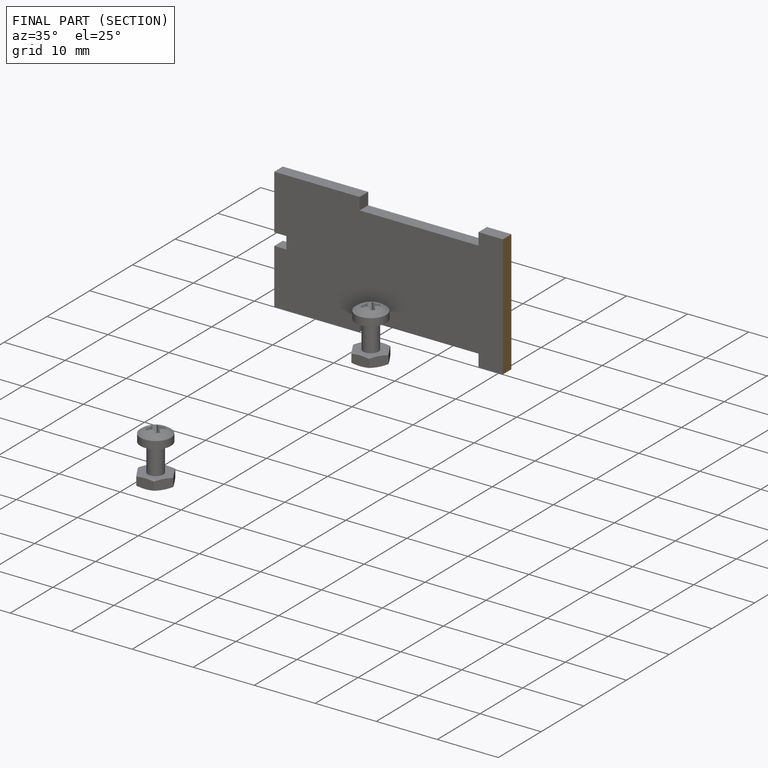
[diagram: finished part — half-section view (interior)]
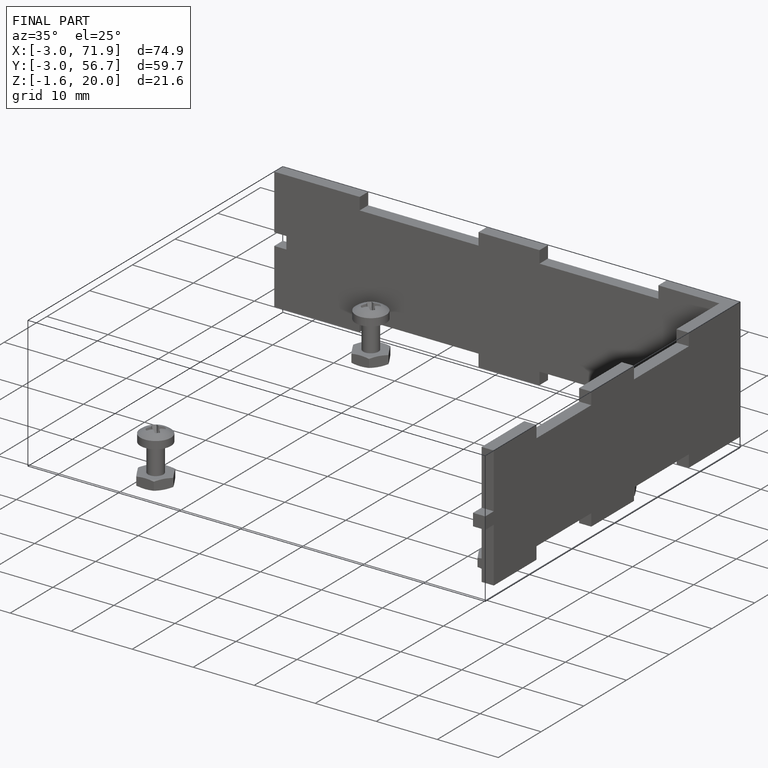
[diagram: finished part — iso view with bounding-box wireframe]
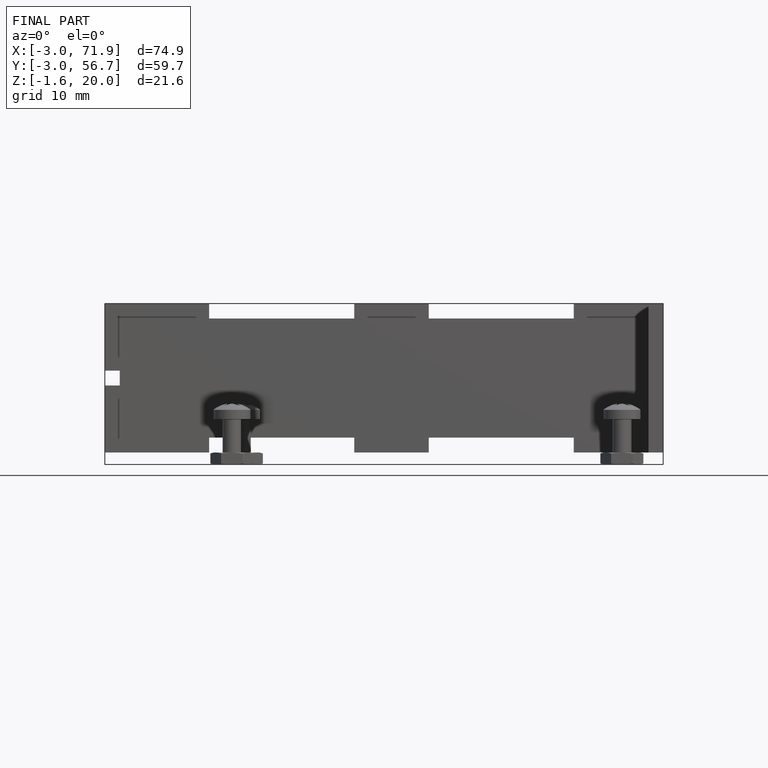
[diagram: finished part — front view with bounding-box wireframe]
